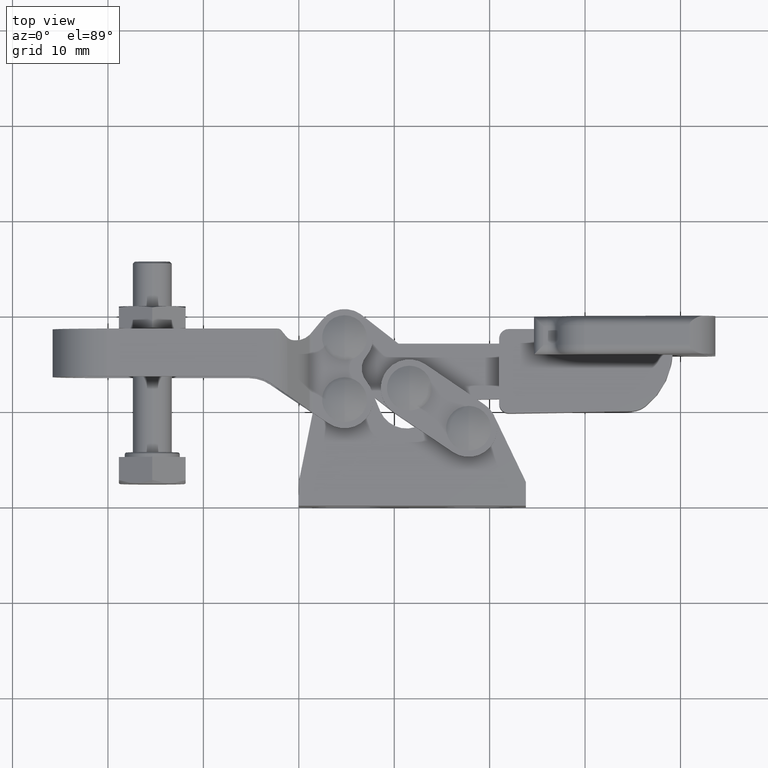
[diagram: clean part render]
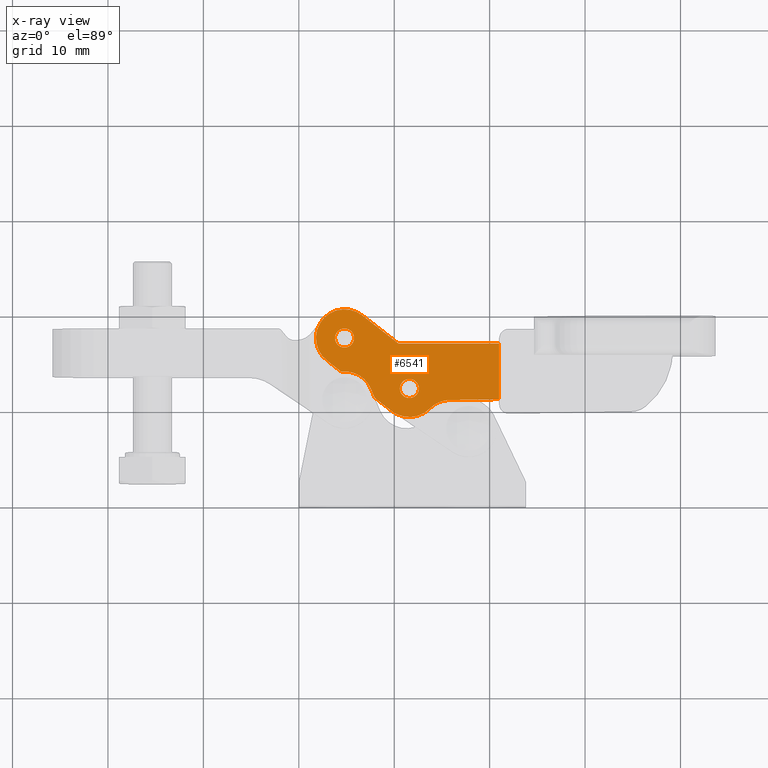
[diagram: x-ray — body ghosted, one internal face saturated and labeled with its STEP entity id]
A machine part, top view, then the same camera in x-ray: the body is ghosted and one INTERNAL B-rep face — a face not visible from any outside direction — is saturated and labeled: STEP entity #6541.
In plain terms, the highlighted planar face has unit normal (0, 0, 1).
Its self-contained STEP definition (entity closure, byte-faithful):
#161 = CARTESIAN_POINT ( 'NONE',  ( 12.58575087524181900, 12.31112264010130600, 0.002499999999998911500 ) ) ;
#454 = CARTESIAN_POINT ( 'NONE',  ( 4.791914488030925200, 17.60000245742333300, 0.002499999999999898100 ) ) ;
#455 = VERTEX_POINT ( 'NONE', #8428 ) ;
#459 = EDGE_CURVE ( 'NONE', #5910, #3004, #2069, .T. ) ;
#486 = ORIENTED_EDGE ( 'NONE', *, *, #3138, .T. ) ;
#529 = EDGE_CURVE ( 'NONE', #2301, #6059, #4044, .T. ) ;
#530 = CARTESIAN_POINT ( 'NONE',  ( 7.938310806159001300, 11.34870487134344200, 0.002499999999999464500 ) ) ;
#657 = CARTESIAN_POINT ( 'NONE',  ( 10.44633366691438600, 17.00001914928718300, 0.002499999999999247600 ) ) ;
#688 = CARTESIAN_POINT ( 'NONE',  ( 7.561161039115453300, 12.25385678607225300, 0.002499999999999464500 ) ) ;
#752 = ORIENTED_EDGE ( 'NONE', *, *, #5393, .T. ) ;
#980 = LINE ( 'NONE', #7966, #2948 ) ;
#982 = ORIENTED_EDGE ( 'NONE', *, *, #6910, .F. ) ;
#1060 = EDGE_CURVE ( 'NONE', #5332, #2929, #9384, .T. ) ;
#1152 = EDGE_CURVE ( 'NONE', #3004, #5910, #7072, .T. ) ;
#1230 = CARTESIAN_POINT ( 'NONE',  ( 4.791914488030925200, 17.60000245742333300, 0.002499999999999898100 ) ) ;
#1247 = AXIS2_PLACEMENT_3D ( 'NONE', #454, #9721, #2079 ) ;
#1339 = DIRECTION ( 'NONE',  ( -1.195700225862290100E-016, -3.529711471803216000E-022, -1.000000000000000000 ) ) ;
#1404 = ORIENTED_EDGE ( 'NONE', *, *, #8624, .T. ) ;
#1456 = DIRECTION ( 'NONE',  ( -1.195700225862290100E-016, -3.529711471803216000E-022, -1.000000000000000000 ) ) ;
#1587 = VERTEX_POINT ( 'NONE', #688 ) ;
#1636 = CARTESIAN_POINT ( 'NONE',  ( 11.58575087524617700, 12.31111968809762100, 0.002499999999999030800 ) ) ;
#1812 = VECTOR ( 'NONE', #6158, 1000.000000000000100 ) ;
#1861 = ORIENTED_EDGE ( 'NONE', *, *, #2691, .T. ) ;
#1970 = VERTEX_POINT ( 'NONE', #2332 ) ;
#2021 = ORIENTED_EDGE ( 'NONE', *, *, #5005, .T. ) ;
#2060 = FACE_BOUND ( 'NONE', #5010, .T. ) ;
#2069 = CIRCLE ( 'NONE', #1247, 0.9999999999999995600 ) ;
#2079 = DIRECTION ( 'NONE',  ( 0.9999999999956428200, 2.952003686634842200E-006, -1.194316455628564000E-016 ) ) ;
#2152 = VERTEX_POINT ( 'NONE', #657 ) ;
#2191 = CARTESIAN_POINT ( 'NONE',  ( 15.85970585166633000, 11.10003512955694100, 0.002499999999998597100 ) ) ;
#2294 = CARTESIAN_POINT ( 'NONE',  ( 7.938310806159001300, 11.34870487134344200, 0.002499999999999464500 ) ) ;
#2301 = VERTEX_POINT ( 'NONE', #9012 ) ;
#2332 = CARTESIAN_POINT ( 'NONE',  ( 20.99221437773261200, 11.18000723304593800, 0.002499999999997946600 ) ) ;
#2349 = ORIENTED_EDGE ( 'NONE', *, *, #1060, .F. ) ;
#2386 = DIRECTION ( 'NONE',  ( 0.9999999999956428200, 2.952003684900116200E-006, -1.194316455628563000E-016 ) ) ;
#2486 = EDGE_CURVE ( 'NONE', #2799, #455, #3746, .T. ) ;
#2691 = EDGE_CURVE ( 'NONE', #1970, #2301, #3522, .T. ) ;
#2695 = DIRECTION ( 'NONE',  ( -0.7890826525169242200, 0.6142870399877038400, 9.435041375824886600E-017 ) ) ;
#2799 = VERTEX_POINT ( 'NONE', #6038 ) ;
#2929 = VERTEX_POINT ( 'NONE', #5712 ) ;
#2948 = VECTOR ( 'NONE', #2695, 1000.000000000000100 ) ;
#3004 = VERTEX_POINT ( 'NONE', #7344 ) ;
#3018 = VECTOR ( 'NONE', #5767, 999.9999999999998900 ) ;
#3138 = EDGE_CURVE ( 'NONE', #455, #5434, #5793, .T. ) ;
#3216 = CARTESIAN_POINT ( 'NONE',  ( 11.58575087524617700, 12.31111968809762100, 0.002499999999999030800 ) ) ;
#3272 = DIRECTION ( 'NONE',  ( 1.195700225862290100E-016, 3.529711471803216000E-022, 1.000000000000000000 ) ) ;
#3284 = CARTESIAN_POINT ( 'NONE',  ( 10.44633366691438600, 17.00001914928718300, 0.002499999999999247600 ) ) ;
#3286 = CARTESIAN_POINT ( 'NONE',  ( 4.791933676054844300, 11.10000245745170300, 0.002499999999999898100 ) ) ;
#3303 = AXIS2_PLACEMENT_3D ( 'NONE', #3327, #8700, #4063 ) ;
#3327 = CARTESIAN_POINT ( 'NONE',  ( 20.99227276823840800, -8.599949719173285000, 0.002499999999997946600 ) ) ;
#3522 = LINE ( 'NONE', #2191, #6900 ) ;
#3563 = CARTESIAN_POINT ( 'NONE',  ( 20.99219719694409400, 17.00005028071517500, 0.002499999999997946600 ) ) ;
#3746 = LINE ( 'NONE', #7300, #1812 ) ;
#3897 = DIRECTION ( 'NONE',  ( -0.9998786307653173600, -0.01557959366845623900, 1.195555159632437200E-016 ) ) ;
#3945 = DIRECTION ( 'NONE',  ( 0.9999999999956427100, 2.952003684321875200E-006, -1.195728177207320100E-016 ) ) ;
#3988 = AXIS2_PLACEMENT_3D ( 'NONE', #6614, #1339, #5817 ) ;
#4020 = DIRECTION ( 'NONE',  ( 0.9999999999956427100, 2.952003684321877300E-006, -1.195728177207321100E-016 ) ) ;
#4028 = VECTOR ( 'NONE', #9738, 999.9999999999998900 ) ;
#4044 = CIRCLE ( 'NONE', #5222, 3.000000000000213200 ) ;
#4063 = DIRECTION ( 'NONE',  ( 0.9999999999956428200, 2.952003684069184500E-006, -1.195700225867499300E-016 ) ) ;
#4226 = CIRCLE ( 'NONE', #7223, 1.000000000000000400 ) ;
#4239 = CARTESIAN_POINT ( 'NONE',  ( 9.742887084705140300, 9.943873809547467200, 0.002499999999999247600 ) ) ;
#4256 = AXIS2_PLACEMENT_3D ( 'NONE', #3216, #8570, #3945 ) ;
#4289 = LINE ( 'NONE', #3284, #6367 ) ;
#4307 = DIRECTION ( 'NONE',  ( 0.9999999999956427100, 2.952003684321666400E-006, -1.195728177207235800E-016 ) ) ;
#4557 = ORIENTED_EDGE ( 'NONE', *, *, #8285, .T. ) ;
#4593 = VECTOR ( 'NONE', #6872, 1000.000000000000100 ) ;
#4781 = ORIENTED_EDGE ( 'NONE', *, *, #5128, .T. ) ;
#4793 = PLANE ( 'NONE',  #3303 ) ;
#5005 = EDGE_CURVE ( 'NONE', #9369, #1587, #9140, .T. ) ;
#5010 = EDGE_LOOP ( 'NONE', ( #2349, #982 ) ) ;
#5021 = CIRCLE ( 'NONE', #4256, 3.000000000000001300 ) ;
#5128 = EDGE_CURVE ( 'NONE', #5434, #2152, #6354, .T. ) ;
#5211 = AXIS2_PLACEMENT_3D ( 'NONE', #6828, #1456, #8555 ) ;
#5222 = AXIS2_PLACEMENT_3D ( 'NONE', #9730, #3272, #4307 ) ;
#5332 = VERTEX_POINT ( 'NONE', #161 ) ;
#5393 = EDGE_CURVE ( 'NONE', #1587, #2799, #7284, .T. ) ;
#5434 = VERTEX_POINT ( 'NONE', #7930 ) ;
#5535 = DIRECTION ( 'NONE',  ( 0.9999999999956428200, 2.952003684069184500E-006, -1.195700225867499300E-016 ) ) ;
#5582 = CARTESIAN_POINT ( 'NONE',  ( 13.72273279146177500, 10.20557740883379200, 0.002499999999998813900 ) ) ;
#5621 = VERTEX_POINT ( 'NONE', #3563 ) ;
#5706 = DIRECTION ( 'NONE',  ( -1.195700225862290100E-016, -3.529711471803216000E-022, -1.000000000000000000 ) ) ;
#5712 = CARTESIAN_POINT ( 'NONE',  ( 10.58575087525053200, 12.31111673609393800, 0.002499999999999150000 ) ) ;
#5767 = DIRECTION ( 'NONE',  ( -0.3846181095401543000, 0.9230757876868821400, 4.598847022566920600E-017 ) ) ;
#5793 = CIRCLE ( 'NONE', #5211, 3.000000000000133200 ) ;
#5817 = DIRECTION ( 'NONE',  ( 0.9999999999956428200, 2.952003684900116200E-006, -1.194316455628563000E-016 ) ) ;
#5846 = ORIENTED_EDGE ( 'NONE', *, *, #459, .F. ) ;
#5864 = CARTESIAN_POINT ( 'NONE',  ( 6.634775607996048500, 19.96725041497269600, 0.002499999999999681300 ) ) ;
#5910 = VERTEX_POINT ( 'NONE', #9319 ) ;
#6038 = CARTESIAN_POINT ( 'NONE',  ( 4.431971470700254700, 14.07832870061517600, 0.002499999999999898100 ) ) ;
#6058 = FACE_BOUND ( 'NONE', #6875, .T. ) ;
#6059 = VERTEX_POINT ( 'NONE', #5582 ) ;
#6158 = DIRECTION ( 'NONE',  ( -0.7890826525164075200, 0.6142870399883676400, 9.435041375818708900E-017 ) ) ;
#6166 = ORIENTED_EDGE ( 'NONE', *, *, #1152, .F. ) ;
#6334 = EDGE_CURVE ( 'NONE', #1970, #5621, #6691, .T. ) ;
#6354 = LINE ( 'NONE', #5864, #4028 ) ;
#6367 = VECTOR ( 'NONE', #5535, 1000.000000000000100 ) ;
#6413 = ORIENTED_EDGE ( 'NONE', *, *, #9608, .T. ) ;
#6528 = ORIENTED_EDGE ( 'NONE', *, *, #6334, .F. ) ;
#6541 = ADVANCED_FACE ( 'NONE', ( #2060, #6058, #8085 ), #4793, .F. ) ;
#6614 = CARTESIAN_POINT ( 'NONE',  ( 11.58575087524617700, 12.31111968809762100, 0.002499999999999030800 ) ) ;
#6676 = VERTEX_POINT ( 'NONE', #4239 ) ;
#6691 = LINE ( 'NONE', #9903, #4593 ) ;
#6694 = AXIS2_PLACEMENT_3D ( 'NONE', #3286, #8653, #4020 ) ;
#6828 = CARTESIAN_POINT ( 'NONE',  ( 4.791914488030925200, 17.60000245742333300, 0.002499999999999898100 ) ) ;
#6872 = DIRECTION ( 'NONE',  ( -2.952003684069184500E-006, 0.9999999999956428200, 0.0000000000000000000 ) ) ;
#6875 = EDGE_LOOP ( 'NONE', ( #6166, #5846 ) ) ;
#6900 = VECTOR ( 'NONE', #3897, 1000.000000000000100 ) ;
#6910 = EDGE_CURVE ( 'NONE', #2929, #5332, #4226, .T. ) ;
#6917 = DIRECTION ( 'NONE',  ( -1.195700225862290100E-016, -3.529711471803216000E-022, -1.000000000000000000 ) ) ;
#7072 = CIRCLE ( 'NONE', #7621, 0.9999999999999995600 ) ;
#7223 = AXIS2_PLACEMENT_3D ( 'NONE', #1636, #6917, #2386 ) ;
#7284 = CIRCLE ( 'NONE', #6694, 2.999999999999999100 ) ;
#7300 = CARTESIAN_POINT ( 'NONE',  ( 2.949053368065685600, 15.23275449987403700, 0.002500000000000115000 ) ) ;
#7344 = CARTESIAN_POINT ( 'NONE',  ( 5.791914488026567800, 17.60000540942701600, 0.002499999999999778900 ) ) ;
#7464 = EDGE_LOOP ( 'NONE', ( #1861, #9645, #1404, #4557, #2021, #752, #8654, #486, #4781, #6413, #6528 ) ) ;
#7621 = AXIS2_PLACEMENT_3D ( 'NONE', #1230, #5706, #8777 ) ;
#7930 = CARTESIAN_POINT ( 'NONE',  ( 6.634775607996048500, 19.96725041497269600, 0.002499999999999681300 ) ) ;
#7966 = CARTESIAN_POINT ( 'NONE',  ( 7.938310806159001300, 11.34870487134344200, 0.002499999999999464500 ) ) ;
#8085 = FACE_OUTER_BOUND ( 'NONE', #7464, .T. ) ;
#8285 = EDGE_CURVE ( 'NONE', #6676, #9369, #980, .T. ) ;
#8428 = CARTESIAN_POINT ( 'NONE',  ( 2.949053368065691000, 15.23275449987404400, 0.002500000000000115000 ) ) ;
#8555 = DIRECTION ( 'NONE',  ( 0.9999999999956427100, 2.952003684321745100E-006, -1.195728177207267600E-016 ) ) ;
#8570 = DIRECTION ( 'NONE',  ( -1.195700225862290100E-016, -3.529711471803216000E-022, -1.000000000000000000 ) ) ;
#8624 = EDGE_CURVE ( 'NONE', #6059, #6676, #5021, .T. ) ;
#8653 = DIRECTION ( 'NONE',  ( 1.195700225862290100E-016, 3.529711471803216000E-022, 1.000000000000000000 ) ) ;
#8654 = ORIENTED_EDGE ( 'NONE', *, *, #2486, .T. ) ;
#8700 = DIRECTION ( 'NONE',  ( 1.195700225862289400E-016, 3.529711471803213600E-022, 1.000000000000000000 ) ) ;
#8777 = DIRECTION ( 'NONE',  ( 0.9999999999956428200, 2.952003683165395200E-006, -1.194316455628564000E-016 ) ) ;
#9012 = CARTESIAN_POINT ( 'NONE',  ( 15.85970585166633000, 11.10003512955695500, 0.002499999999998597100 ) ) ;
#9140 = LINE ( 'NONE', #530, #3018 ) ;
#9319 = CARTESIAN_POINT ( 'NONE',  ( 3.791914488035282600, 17.59999950541965000, 0.002500000000000017400 ) ) ;
#9369 = VERTEX_POINT ( 'NONE', #2294 ) ;
#9384 = CIRCLE ( 'NONE', #3988, 1.000000000000000400 ) ;
#9608 = EDGE_CURVE ( 'NONE', #2152, #5621, #4289, .T. ) ;
#9645 = ORIENTED_EDGE ( 'NONE', *, *, #529, .T. ) ;
#9721 = DIRECTION ( 'NONE',  ( -1.195700225862290100E-016, -3.529711471803216000E-022, -1.000000000000000000 ) ) ;
#9730 = CARTESIAN_POINT ( 'NONE',  ( 15.85971470767755200, 8.100035129569814500, 0.002499999999998597100 ) ) ;
#9738 = DIRECTION ( 'NONE',  ( 0.7890826525164090800, -0.6142870399883658700, -9.435041375818727300E-017 ) ) ;
#9903 = CARTESIAN_POINT ( 'NONE',  ( 20.99227276823840800, -8.599949719173285000, 0.002499999999997946600 ) ) ;